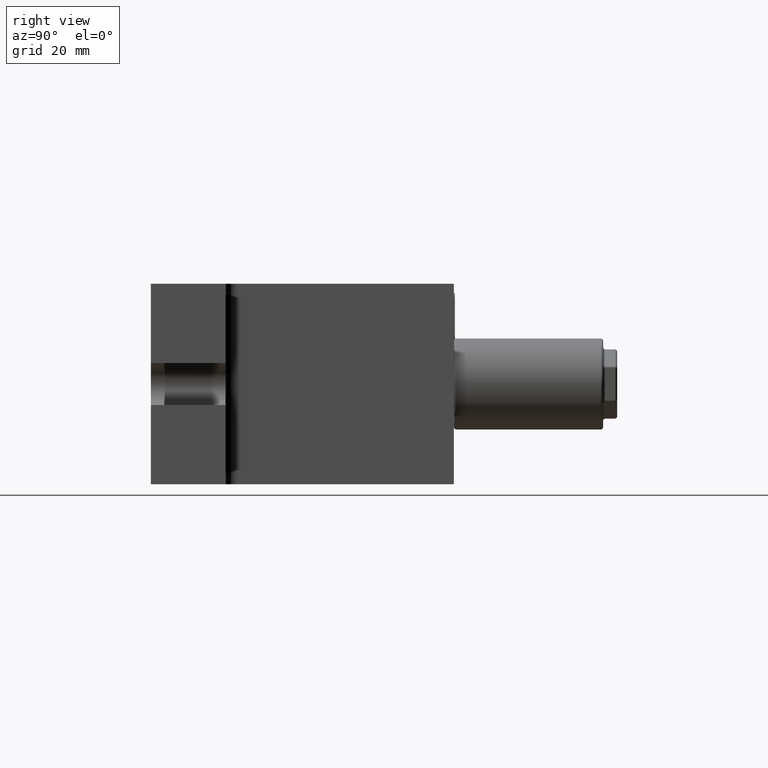
[diagram: clean part render]
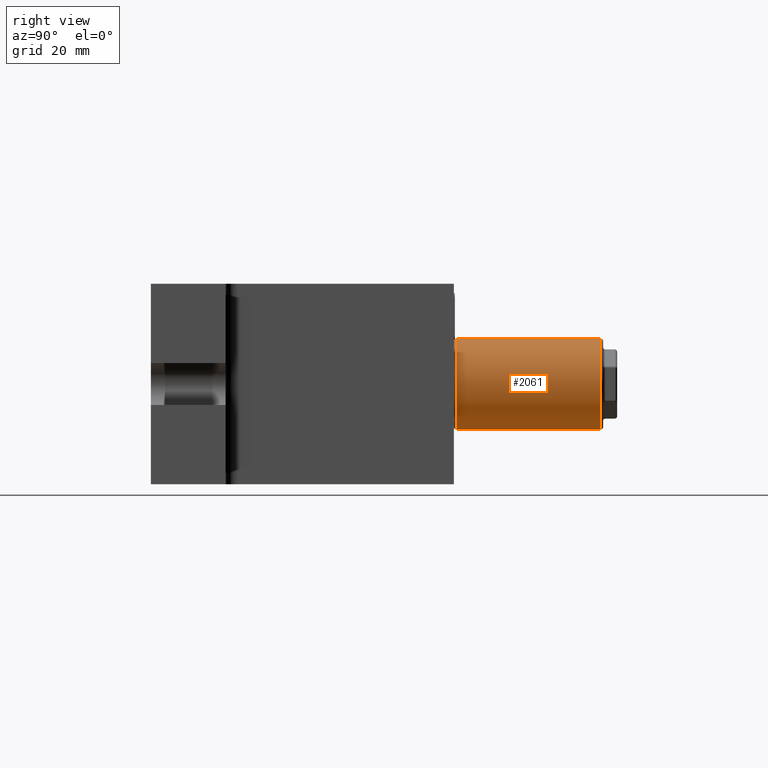
[diagram: same view with one face highlighted and labeled with its STEP entity id]
A machine part, right view. The second image highlights one B-rep face of the part: STEP entity #2061.
In plain terms, the highlighted cylindrical surface (partial cylindrical patch) has radius 9.75 mm, axis along (-0, -1, -0).
Its self-contained STEP definition (entity closure, byte-faithful):
#107 = ORIENTED_EDGE ( 'NONE', *, *, #485, .F. ) ;
#221 = VECTOR ( 'NONE', #9576, 1000.000000000000000 ) ;
#229 = DIRECTION ( 'NONE',  ( -5.959270968386779200E-017, -1.000000000000000000, -1.089523766022739900E-016 ) ) ;
#318 = CARTESIAN_POINT ( 'NONE',  ( 19.50000000000000000, 64.50000000000000000, 9.750000000000000000 ) ) ;
#384 = VERTEX_POINT ( 'NONE', #8223 ) ;
#485 = EDGE_CURVE ( 'NONE', #5476, #5312, #20787, .T. ) ;
#613 = VERTEX_POINT ( 'NONE', #10837 ) ;
#864 = DIRECTION ( 'NONE',  ( -5.959270968386779200E-017, -1.000000000000000000, -1.089523766022739900E-016 ) ) ;
#882 = VERTEX_POINT ( 'NONE', #1273 ) ;
#983 = LINE ( 'NONE', #3050, #10576 ) ;
#1273 = CARTESIAN_POINT ( 'NONE',  ( 19.50000000000000000, 40.50000000000000000, -9.750000000000000000 ) ) ;
#1544 = VERTEX_POINT ( 'NONE', #11759 ) ;
#1741 = DIRECTION ( 'NONE',  ( -5.959270968386779200E-017, -1.000000000000000000, -1.089523766022739900E-016 ) ) ;
#2054 = EDGE_CURVE ( 'NONE', #16630, #8742, #6441, .T. ) ;
#2061 = ADVANCED_FACE ( 'NONE', ( #3360 ), #16551, .T. ) ;
#2501 = EDGE_CURVE ( 'NONE', #1544, #9086, #7479, .T. ) ;
#2539 = CARTESIAN_POINT ( 'NONE',  ( 19.50000000000000000, 64.50000000000000000, -9.750000000000000000 ) ) ;
#2579 = EDGE_CURVE ( 'NONE', #882, #8742, #9527, .T. ) ;
#2659 = LINE ( 'NONE', #4320, #16367 ) ;
#2860 = ORIENTED_EDGE ( 'NONE', *, *, #13661, .F. ) ;
#3050 = CARTESIAN_POINT ( 'NONE',  ( 19.49999999999999600, 64.50000000000000000, -9.749999999999985800 ) ) ;
#3360 = FACE_OUTER_BOUND ( 'NONE', #16203, .T. ) ;
#3518 = VERTEX_POINT ( 'NONE', #3759 ) ;
#3543 = VECTOR ( 'NONE', #864, 1000.000000000000000 ) ;
#3759 = CARTESIAN_POINT ( 'NONE',  ( 19.50000000000000000, 48.50000000000000000, 9.750000000000000000 ) ) ;
#3832 = VECTOR ( 'NONE', #11334, 1000.000000000000000 ) ;
#4084 = DIRECTION ( 'NONE',  ( -5.959270968386779200E-017, -1.000000000000000000, -1.089523766022739900E-016 ) ) ;
#4320 = CARTESIAN_POINT ( 'NONE',  ( 19.50000000000000000, 64.50000000000000000, 9.750000000000014200 ) ) ;
#4478 = EDGE_CURVE ( 'NONE', #613, #21143, #17351, .T. ) ;
#4490 = DIRECTION ( 'NONE',  ( -5.959270968386779200E-017, -1.000000000000000000, -1.089523766022739900E-016 ) ) ;
#4546 = VECTOR ( 'NONE', #10605, 1000.000000000000000 ) ;
#4609 = LINE ( 'NONE', #15904, #221 ) ;
#5312 = VERTEX_POINT ( 'NONE', #18891 ) ;
#5330 = ORIENTED_EDGE ( 'NONE', *, *, #21168, .T. ) ;
#5457 = ORIENTED_EDGE ( 'NONE', *, *, #2501, .T. ) ;
#5476 = VERTEX_POINT ( 'NONE', #19283 ) ;
#5606 = ORIENTED_EDGE ( 'NONE', *, *, #9380, .F. ) ;
#5640 = ORIENTED_EDGE ( 'NONE', *, *, #21157, .T. ) ;
#5809 = ORIENTED_EDGE ( 'NONE', *, *, #19599, .T. ) ;
#6017 = CARTESIAN_POINT ( 'NONE',  ( 19.50000000000000000, 64.50000000000000000, -9.750000000000000000 ) ) ;
#6395 = CARTESIAN_POINT ( 'NONE',  ( 19.50000000000000000, 64.50000000000000000, 9.750000000000000000 ) ) ;
#6441 = CIRCLE ( 'NONE', #6492, 9.750000000000000000 ) ;
#6492 = AXIS2_PLACEMENT_3D ( 'NONE', #8909, #7315, #7534 ) ;
#6619 = LINE ( 'NONE', #2539, #3543 ) ;
#6807 = VECTOR ( 'NONE', #8674, 1000.000000000000000 ) ;
#7091 = VECTOR ( 'NONE', #4490, 1000.000000000000000 ) ;
#7179 = LINE ( 'NONE', #19578, #3832 ) ;
#7248 = CARTESIAN_POINT ( 'NONE',  ( 19.50000000000000000, 64.50000000000000000, 1.387778780781446000E-014 ) ) ;
#7315 = DIRECTION ( 'NONE',  ( 5.959270968386779200E-017, 1.000000000000000000, 1.089523766022739900E-016 ) ) ;
#7319 = ORIENTED_EDGE ( 'NONE', *, *, #14012, .F. ) ;
#7479 = LINE ( 'NONE', #15510, #16817 ) ;
#7534 = DIRECTION ( 'NONE',  ( 0.0000000000000000000, 0.0000000000000000000, -1.000000000000000000 ) ) ;
#8223 = CARTESIAN_POINT ( 'NONE',  ( 19.50000000000000000, 50.50000000000000000, -9.750000000000000000 ) ) ;
#8286 = CARTESIAN_POINT ( 'NONE',  ( 19.50000000000000000, 50.50000000000000000, 9.750000000000000000 ) ) ;
#8674 = DIRECTION ( 'NONE',  ( -5.959270968386779200E-017, -1.000000000000000000, -1.089523766022739900E-016 ) ) ;
#8742 = VERTEX_POINT ( 'NONE', #14150 ) ;
#8878 = CARTESIAN_POINT ( 'NONE',  ( 19.49999999999999600, 64.50000000000000000, -9.749999999999985800 ) ) ;
#8909 = CARTESIAN_POINT ( 'NONE',  ( 19.50000000000000000, 33.00000000000000000, 0.0000000000000000000 ) ) ;
#8945 = LINE ( 'NONE', #10391, #4546 ) ;
#9061 = CARTESIAN_POINT ( 'NONE',  ( 19.50000000000000000, 64.50000000000000000, 9.750000000000014200 ) ) ;
#9086 = VERTEX_POINT ( 'NONE', #8286 ) ;
#9092 = DIRECTION ( 'NONE',  ( 5.959270968386779200E-017, 1.000000000000000000, 1.089523766022739900E-016 ) ) ;
#9361 = CARTESIAN_POINT ( 'NONE',  ( 19.49999999999999600, 64.00000000000000000, -9.749999999999985800 ) ) ;
#9380 = EDGE_CURVE ( 'NONE', #384, #5476, #13843, .T. ) ;
#9527 = LINE ( 'NONE', #12600, #12922 ) ;
#9576 = DIRECTION ( 'NONE',  ( -5.959270968386779200E-017, -1.000000000000000000, -1.089523766022739900E-016 ) ) ;
#9744 = ORIENTED_EDGE ( 'NONE', *, *, #2579, .F. ) ;
#9910 = ORIENTED_EDGE ( 'NONE', *, *, #11545, .T. ) ;
#9998 = VERTEX_POINT ( 'NONE', #10419 ) ;
#10391 = CARTESIAN_POINT ( 'NONE',  ( 19.50000000000000000, 64.50000000000000000, 9.750000000000000000 ) ) ;
#10415 = LINE ( 'NONE', #15380, #17650 ) ;
#10419 = CARTESIAN_POINT ( 'NONE',  ( 19.50000000000000000, 42.50000000000000000, 9.750000000000000000 ) ) ;
#10576 = VECTOR ( 'NONE', #21348, 1000.000000000000000 ) ;
#10588 = DIRECTION ( 'NONE',  ( 0.0000000000000000000, 0.0000000000000000000, 1.000000000000000000 ) ) ;
#10605 = DIRECTION ( 'NONE',  ( 5.959270968386779200E-017, 1.000000000000000000, 1.089523766022739900E-016 ) ) ;
#10837 = CARTESIAN_POINT ( 'NONE',  ( 19.49999999999999600, 64.00000000000000000, 9.750000000000014200 ) ) ;
#11334 = DIRECTION ( 'NONE',  ( -5.959270968386779200E-017, -1.000000000000000000, -1.089523766022739900E-016 ) ) ;
#11545 = EDGE_CURVE ( 'NONE', #14063, #613, #18590, .T. ) ;
#11642 = DIRECTION ( 'NONE',  ( -5.959270968386779200E-017, -1.000000000000000000, -1.089523766022739900E-016 ) ) ;
#11715 = VERTEX_POINT ( 'NONE', #20676 ) ;
#11759 = CARTESIAN_POINT ( 'NONE',  ( 19.50000000000000000, 56.50000000000000000, 9.750000000000000000 ) ) ;
#11909 = ORIENTED_EDGE ( 'NONE', *, *, #2054, .T. ) ;
#12014 = VERTEX_POINT ( 'NONE', #16190 ) ;
#12072 = AXIS2_PLACEMENT_3D ( 'NONE', #7248, #19125, #10588 ) ;
#12218 = ORIENTED_EDGE ( 'NONE', *, *, #14129, .T. ) ;
#12376 = LINE ( 'NONE', #6395, #17793 ) ;
#12392 = AXIS2_PLACEMENT_3D ( 'NONE', #13384, #11642, #14969 ) ;
#12444 = DIRECTION ( 'NONE',  ( -5.959270968386779200E-017, -1.000000000000000000, -1.089523766022739900E-016 ) ) ;
#12600 = CARTESIAN_POINT ( 'NONE',  ( 19.49999999999999600, 64.50000000000000000, -9.749999999999985800 ) ) ;
#12922 = VECTOR ( 'NONE', #16073, 1000.000000000000000 ) ;
#13111 = ORIENTED_EDGE ( 'NONE', *, *, #15077, .F. ) ;
#13384 = CARTESIAN_POINT ( 'NONE',  ( 19.50000000000000000, 64.00000000000000000, 1.387778780781446000E-014 ) ) ;
#13661 = EDGE_CURVE ( 'NONE', #14063, #11715, #983, .T. ) ;
#13843 = LINE ( 'NONE', #6017, #7091 ) ;
#14012 = EDGE_CURVE ( 'NONE', #14626, #384, #4609, .T. ) ;
#14063 = VERTEX_POINT ( 'NONE', #9361 ) ;
#14118 = ORIENTED_EDGE ( 'NONE', *, *, #14138, .F. ) ;
#14129 = EDGE_CURVE ( 'NONE', #3518, #9998, #7179, .T. ) ;
#14138 = EDGE_CURVE ( 'NONE', #3518, #9086, #12376, .T. ) ;
#14150 = CARTESIAN_POINT ( 'NONE',  ( 19.49999999999999600, 33.00000000000000000, -9.750000000000000000 ) ) ;
#14626 = VERTEX_POINT ( 'NONE', #19333 ) ;
#14756 = VECTOR ( 'NONE', #4084, 1000.000000000000000 ) ;
#14969 = DIRECTION ( 'NONE',  ( 0.0000000000000000000, 0.0000000000000000000, -1.000000000000000000 ) ) ;
#15023 = VECTOR ( 'NONE', #1741, 1000.000000000000000 ) ;
#15077 = EDGE_CURVE ( 'NONE', #11715, #14626, #6619, .T. ) ;
#15380 = CARTESIAN_POINT ( 'NONE',  ( 19.50000000000000000, 64.50000000000000000, -9.750000000000000000 ) ) ;
#15510 = CARTESIAN_POINT ( 'NONE',  ( 19.50000000000000000, 64.50000000000000000, 9.750000000000014200 ) ) ;
#15586 = EDGE_CURVE ( 'NONE', #1544, #21143, #8945, .T. ) ;
#15904 = CARTESIAN_POINT ( 'NONE',  ( 19.49999999999999600, 64.50000000000000000, -9.749999999999985800 ) ) ;
#16073 = DIRECTION ( 'NONE',  ( -5.959270968386779200E-017, -1.000000000000000000, -1.089523766022739900E-016 ) ) ;
#16190 = CARTESIAN_POINT ( 'NONE',  ( 19.50000000000000000, 40.50000000000000000, 9.750000000000000000 ) ) ;
#16203 = EDGE_LOOP ( 'NONE', ( #2860, #9910, #19524, #21409, #5457, #14118, #12218, #5809, #5640, #11909, #9744, #5330, #107, #5606, #7319, #13111 ) ) ;
#16367 = VECTOR ( 'NONE', #12444, 1000.000000000000000 ) ;
#16551 = CYLINDRICAL_SURFACE ( 'NONE', #12072, 9.750000000000000000 ) ;
#16630 = VERTEX_POINT ( 'NONE', #18226 ) ;
#16817 = VECTOR ( 'NONE', #229, 1000.000000000000000 ) ;
#17351 = LINE ( 'NONE', #9061, #14756 ) ;
#17650 = VECTOR ( 'NONE', #9092, 1000.000000000000000 ) ;
#17793 = VECTOR ( 'NONE', #17993, 1000.000000000000000 ) ;
#17993 = DIRECTION ( 'NONE',  ( 5.959270968386779200E-017, 1.000000000000000000, 1.089523766022739900E-016 ) ) ;
#18226 = CARTESIAN_POINT ( 'NONE',  ( 19.49999999999999600, 33.00000000000000000, 9.750000000000000000 ) ) ;
#18590 = CIRCLE ( 'NONE', #12392, 9.750000000000000000 ) ;
#18891 = CARTESIAN_POINT ( 'NONE',  ( 19.50000000000000000, 42.50000000000000000, -9.750000000000000000 ) ) ;
#19125 = DIRECTION ( 'NONE',  ( -5.959270968386779200E-017, -1.000000000000000000, -1.089523766022739900E-016 ) ) ;
#19283 = CARTESIAN_POINT ( 'NONE',  ( 19.50000000000000000, 48.50000000000000000, -9.750000000000000000 ) ) ;
#19333 = CARTESIAN_POINT ( 'NONE',  ( 19.50000000000000000, 56.50000000000000000, -9.750000000000000000 ) ) ;
#19418 = LINE ( 'NONE', #318, #15023 ) ;
#19524 = ORIENTED_EDGE ( 'NONE', *, *, #4478, .T. ) ;
#19578 = CARTESIAN_POINT ( 'NONE',  ( 19.50000000000000000, 64.50000000000000000, 9.750000000000014200 ) ) ;
#19599 = EDGE_CURVE ( 'NONE', #9998, #12014, #19418, .T. ) ;
#20138 = CARTESIAN_POINT ( 'NONE',  ( 19.50000000000000000, 58.50000000000000000, 9.750000000000000000 ) ) ;
#20676 = CARTESIAN_POINT ( 'NONE',  ( 19.50000000000000000, 58.50000000000000000, -9.750000000000000000 ) ) ;
#20787 = LINE ( 'NONE', #8878, #6807 ) ;
#21143 = VERTEX_POINT ( 'NONE', #20138 ) ;
#21157 = EDGE_CURVE ( 'NONE', #12014, #16630, #2659, .T. ) ;
#21168 = EDGE_CURVE ( 'NONE', #882, #5312, #10415, .T. ) ;
#21348 = DIRECTION ( 'NONE',  ( -5.959270968386779200E-017, -1.000000000000000000, -1.089523766022739900E-016 ) ) ;
#21409 = ORIENTED_EDGE ( 'NONE', *, *, #15586, .F. ) ;